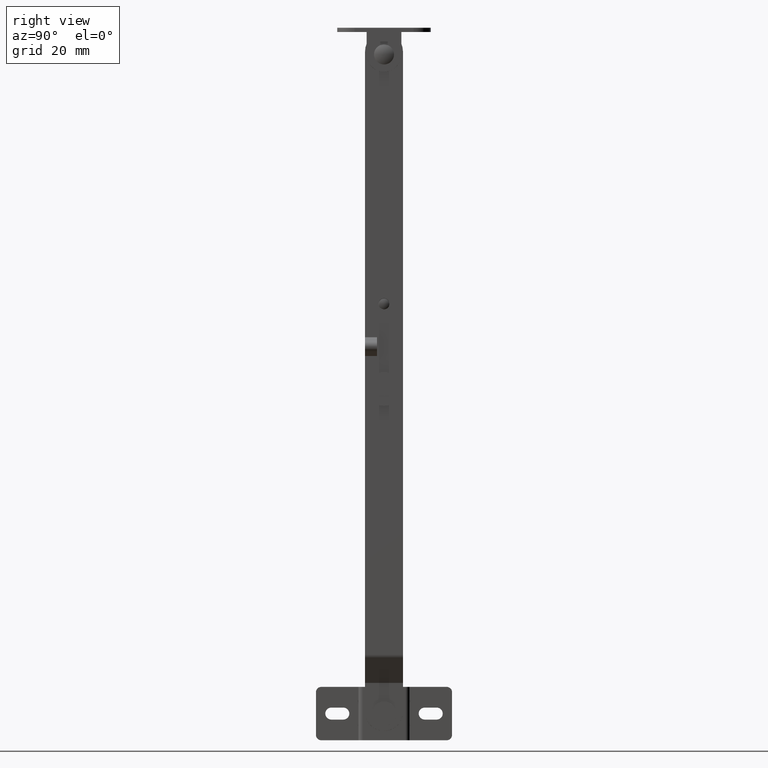
[diagram: clean part render]
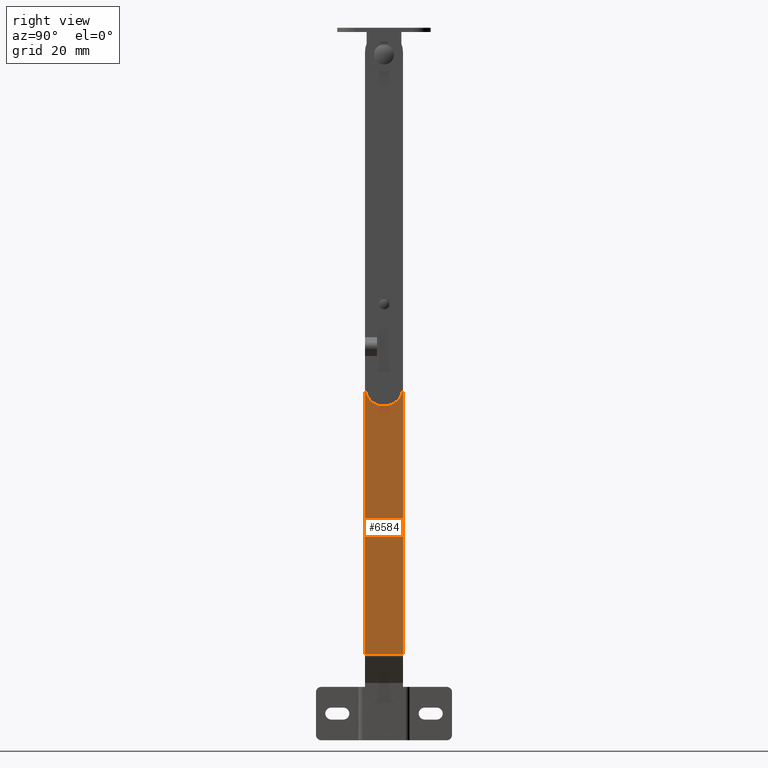
[diagram: same view with one face highlighted and labeled with its STEP entity id]
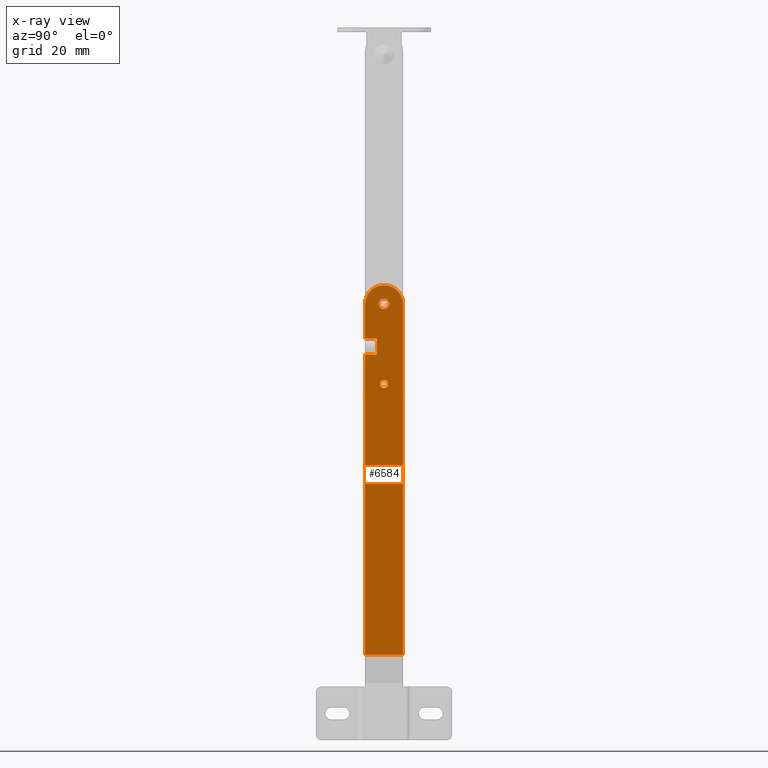
[diagram: x-ray of the same camera — body ghosted, the highlighted face saturated]
A machine part, right view. The second image highlights one B-rep face of the part: STEP entity #6584.
The next image is the same camera in x-ray: the body ghosted, the highlighted face saturated — about 0% of this face is hidden behind the body in this view.
In plain terms, the highlighted face is a freeform B-spline surface patch.
Its self-contained STEP definition (entity closure, byte-faithful):
#5370=CARTESIAN_POINT('',(18.000005999997811,-1.069875197960715,1.051364416939443));
#5371=VERTEX_POINT('',#5370);
#5372=CARTESIAN_POINT('',(18.000005999999850,-1.499999999999996,0.000000101906706));
#5373=VERTEX_POINT('',#5372);
#5374=CARTESIAN_POINT('',(18.000005999997811,-1.069875197960715,1.051364416939443));
#5375=CARTESIAN_POINT('',(18.000005999998098,-1.223274761191733,0.895759266303907));
#5376=CARTESIAN_POINT('',(18.000005999998809,-1.433295734405111,0.558185919963708));
#5377=CARTESIAN_POINT('',(18.000005999999502,-1.500104318488121,0.169912075723086));
#5378=CARTESIAN_POINT('',(18.000005999999850,-1.499999999999996,0.000000101906706));
#5379=B_SPLINE_CURVE_WITH_KNOTS('',3,(#5374,#5375,#5376,#5377,#5378),.UNSPECIFIED.,.F.,.U.,(4,1,4),(0.000000241074439,0.655361660020922,1.165122154659659),.UNSPECIFIED.);
#5380=EDGE_CURVE('',#5371,#5373,#5379,.T.);
#5382=CARTESIAN_POINT('',(18.000005999999850,0.0,-1.500000000000000));
#5383=VERTEX_POINT('',#5382);
#5384=CARTESIAN_POINT('',(18.000005999999850,-1.499999999999996,0.000000101906706));
#5385=CARTESIAN_POINT('',(18.000005999999861,-1.500227444283490,-0.196394948544765));
#5386=CARTESIAN_POINT('',(18.000005999999850,-1.441280870387536,-0.490726147554906));
#5387=CARTESIAN_POINT('',(18.000005999999861,-1.232015401121952,-0.882242641139707));
#5388=CARTESIAN_POINT('',(18.000005999999861,-0.932195025719677,-1.213302192652900));
#5389=CARTESIAN_POINT('',(18.000005999999821,-0.490922037095062,-1.449151624591697));
#5390=CARTESIAN_POINT('',(18.000005999999910,-0.147241673740855,-1.500021779058160));
#5391=CARTESIAN_POINT('',(18.000005999999850,0.0,-1.500000000000000));
#5392=B_SPLINE_CURVE_WITH_KNOTS('',3,(#5384,#5385,#5386,#5387,#5388,#5389,#5390,#5391),.UNSPECIFIED.,.F.,.U.,(4,1,1,1,1,4),(0.000000459268588,0.589113397398972,0.883685197253353,1.325465789790729,1.914625473615346,2.356430882423040),.UNSPECIFIED.);
#5393=EDGE_CURVE('',#5373,#5383,#5392,.T.);
#5395=CARTESIAN_POINT('',(18.000005999999850,1.499999999999997,-0.000000101906711));
#5396=VERTEX_POINT('',#5395);
#5397=CARTESIAN_POINT('',(18.000005999999850,0.0,-1.500000000000000));
#5398=CARTESIAN_POINT('',(18.000005999999861,0.196376588844617,-1.500198869482367));
#5399=CARTESIAN_POINT('',(18.000005999999861,0.588929825499899,-1.421784717390424));
#5400=CARTESIAN_POINT('',(18.000005999999850,1.088374743961445,-1.088400118192788));
#5401=CARTESIAN_POINT('',(18.000005999999850,1.421792717255046,-0.588895725307404));
#5402=CARTESIAN_POINT('',(18.000005999999861,1.500198714386067,-0.196383197151813));
#5403=CARTESIAN_POINT('',(18.000005999999850,1.499999999999997,-0.000000101906711));
#5404=B_SPLINE_CURVE_WITH_KNOTS('',3,(#5397,#5398,#5399,#5400,#5401,#5402,#5403),.UNSPECIFIED.,.F.,.U.,(4,1,1,1,4),(0.000000459807827,0.589113369118813,1.178215900984567,1.767323334941643,2.356430767539226),.UNSPECIFIED.);
#5405=EDGE_CURVE('',#5383,#5396,#5404,.T.);
#5407=CARTESIAN_POINT('',(18.000006000000660,1.051364381804585,1.069875161060284));
#5408=VERTEX_POINT('',#5407);
#5409=CARTESIAN_POINT('',(18.000005999999850,1.499999999999997,-0.000000101906711));
#5410=CARTESIAN_POINT('',(18.000005999999988,1.500121525805713,0.173730886278083));
#5411=CARTESIAN_POINT('',(18.000006000000280,1.430228177828410,0.570706831257276));
#5412=CARTESIAN_POINT('',(18.000006000000539,1.210980596278882,0.913542961924922));
#5413=CARTESIAN_POINT('',(18.000006000000660,1.051364381804585,1.069875161060284));
#5414=B_SPLINE_CURVE_WITH_KNOTS('',3,(#5409,#5410,#5411,#5412,#5413),.UNSPECIFIED.,.F.,.U.,(4,1,4),(0.000000135435641,0.521198240613445,1.191308738798347),.UNSPECIFIED.);
#5415=EDGE_CURVE('',#5396,#5408,#5414,.T.);
#5491=CARTESIAN_POINT('',(18.000005999999850,0.0,1.500000000000000));
#5492=VERTEX_POINT('',#5491);
#5493=CARTESIAN_POINT('',(18.000005999999850,0.0,1.500000000000000));
#5494=CARTESIAN_POINT('',(18.000005999999459,-0.223419713383883,1.500373917845267));
#5495=CARTESIAN_POINT('',(18.000005999998631,-0.620098183684959,1.409512868148845));
#5496=CARTESIAN_POINT('',(18.000005999998070,-0.948191207344548,1.175367822666613));
#5497=CARTESIAN_POINT('',(18.000005999997811,-1.069875197960715,1.051364416939443));
#5498=B_SPLINE_CURVE_WITH_KNOTS('',3,(#5493,#5494,#5495,#5496,#5497),.UNSPECIFIED.,.F.,.U.,(4,1,4),(0.000000135444576,0.670110588116630,1.191308657895127),.UNSPECIFIED.);
#5499=EDGE_CURVE('',#5492,#5371,#5498,.T.);
#5521=CARTESIAN_POINT('',(18.000006000000660,1.051364381804585,1.069875161060284));
#5522=CARTESIAN_POINT('',(18.000006000000582,0.930249975253763,1.189035121978661));
#5523=CARTESIAN_POINT('',(18.000006000000312,0.606485883561958,1.413553590749055));
#5524=CARTESIAN_POINT('',(18.000006000000049,0.218502841836865,1.500329550375375));
#5525=CARTESIAN_POINT('',(18.000005999999850,0.0,1.500000000000000));
#5526=B_SPLINE_CURVE_WITH_KNOTS('',3,(#5521,#5522,#5523,#5524,#5525),.UNSPECIFIED.,.F.,.U.,(4,1,4),(0.000000241082939,0.509760772015498,1.165122237614544),.UNSPECIFIED.);
#5527=EDGE_CURVE('',#5408,#5492,#5526,.T.);
#5638=CARTESIAN_POINT('',(18.000005999999900,-0.099999999999767,37.0));
#5639=VERTEX_POINT('',#5638);
#5640=CARTESIAN_POINT('',(18.000005999999900,-7.099999999999810,30.0));
#5641=VERTEX_POINT('',#5640);
#5642=CARTESIAN_POINT('',(18.000005999999900,-0.099999999999767,37.0));
#5643=CARTESIAN_POINT('',(18.000005999999900,-0.787240943959116,37.000264902871081));
#5644=CARTESIAN_POINT('',(18.000005999999939,-1.989721145432791,36.821458734627889));
#5645=CARTESIAN_POINT('',(18.000005999999871,-3.525507808337993,36.163033716187932));
#5646=CARTESIAN_POINT('',(18.000005999999939,-4.748743618887165,35.301506601080781));
#5647=CARTESIAN_POINT('',(18.000005999999910,-5.729157146626868,34.246182747488326));
#5648=CARTESIAN_POINT('',(18.000005999999910,-6.409518120238838,33.110891468642812));
#5649=CARTESIAN_POINT('',(18.000005999999910,-6.946895607827168,31.717893670812000));
#5650=CARTESIAN_POINT('',(18.000005999999910,-7.100336936778954,30.687263162264500));
#5651=CARTESIAN_POINT('',(18.000005999999900,-7.099999999999810,30.0));
#5652=B_SPLINE_CURVE_WITH_KNOTS('',3,(#5642,#5643,#5644,#5645,#5646,#5647,#5648,#5649,#5650,#5651),.UNSPECIFIED.,.F.,.U.,(4,1,1,1,1,1,1,4),(0.000000103439667,2.061694947791631,3.608039198011688,4.982502000589987,6.528757446212728,7.903253018398582,8.934154353678704,10.995850210342780),.UNSPECIFIED.);
#5653=EDGE_CURVE('',#5639,#5641,#5652,.T.);
#5698=CARTESIAN_POINT('',(18.000005999999900,7.100000000000130,30.0));
#5699=VERTEX_POINT('',#5698);
#5700=CARTESIAN_POINT('',(18.000005999999900,0.100000000000100,37.0));
#5701=VERTEX_POINT('',#5700);
#5702=CARTESIAN_POINT('',(18.000005999999900,7.100000000000130,30.0));
#5703=CARTESIAN_POINT('',(18.000005999999871,7.100264147598455,30.687243812945809));
#5704=CARTESIAN_POINT('',(18.000006000000020,6.921458873837890,31.889719167787881));
#5705=CARTESIAN_POINT('',(18.000005999999772,6.263033240860372,33.425507044337067));
#5706=CARTESIAN_POINT('',(18.000006000000042,5.401510095593885,34.648750035756862));
#5707=CARTESIAN_POINT('',(18.000005999999750,4.346171773749406,35.629141261617633));
#5708=CARTESIAN_POINT('',(18.000006000000042,3.112194308434527,36.368732656693247));
#5709=CARTESIAN_POINT('',(18.000005999999971,1.703441702506198,36.872751399164841));
#5710=CARTESIAN_POINT('',(18.000005999999839,0.672696120733801,37.000159077071586));
#5711=CARTESIAN_POINT('',(18.000005999999900,0.100000000000100,37.0));
#5712=B_SPLINE_CURVE_WITH_KNOTS('',3,(#5702,#5703,#5704,#5705,#5706,#5707,#5708,#5709,#5710,#5711),.UNSPECIFIED.,.F.,.U.,(4,1,1,1,1,1,1,4),(0.000000103435360,2.061694947788730,3.608039198009919,4.982502000589058,6.528757446212449,7.903253018398548,9.277781528671991,10.995850210342789),.UNSPECIFIED.);
#5713=EDGE_CURVE('',#5699,#5701,#5712,.T.);
#5749=CARTESIAN_POINT('',(18.000000627530550,-2.599999999999920,16.999990730335298));
#5750=VERTEX_POINT('',#5749);
#5751=CARTESIAN_POINT('',(18.000002195611749,-2.599999999999915,11.000010420705159));
#5752=VERTEX_POINT('',#5751);
#5753=CARTESIAN_POINT('',(18.000000627530550,-2.599999999999920,16.999990730335298));
#5754=CARTESIAN_POINT('',(18.000002195611749,-2.599999999999915,11.000010420705159));
#5755=QUASI_UNIFORM_CURVE('',1,(#5753,#5754),.UNSPECIFIED.,.F.,.U.);
#5756=EDGE_CURVE('',#5750,#5752,#5755,.T.);
#5836=CARTESIAN_POINT('',(17.999997000007362,-7.099999999999885,10.999999999972101));
#5837=VERTEX_POINT('',#5836);
#5843=CARTESIAN_POINT('',(18.000002195611749,-2.599999999999915,11.000010420705159));
#5844=CARTESIAN_POINT('',(17.999997000007362,-7.099999999999885,10.999999999972101));
#5845=QUASI_UNIFORM_CURVE('',1,(#5843,#5844),.UNSPECIFIED.,.F.,.U.);
#5846=EDGE_CURVE('',#5752,#5837,#5845,.T.);
#6079=CARTESIAN_POINT('',(17.999997000004878,-7.099999999999790,16.999999999971699));
#6080=VERTEX_POINT('',#6079);
#6081=CARTESIAN_POINT('',(17.999997000004878,-7.099999999999790,16.999999999971699));
#6082=CARTESIAN_POINT('',(18.000000627530550,-2.599999999999920,16.999990730335298));
#6083=QUASI_UNIFORM_CURVE('',1,(#6081,#6082),.UNSPECIFIED.,.F.,.U.);
#6084=EDGE_CURVE('',#6080,#5750,#6083,.T.);
#6196=CARTESIAN_POINT('',(18.000005999999900,-1.999999999985313,30.000007559947051));
#6197=VERTEX_POINT('',#6196);
#6198=CARTESIAN_POINT('',(18.000005999999900,1.136868E-013,31.999999999999719));
#6199=VERTEX_POINT('',#6198);
#6200=CARTESIAN_POINT('',(18.000005999999900,-1.999999999985313,30.000007559947051));
#6201=CARTESIAN_POINT('',(18.000005999999889,-2.000565371159500,30.311013867417230));
#6202=CARTESIAN_POINT('',(18.000005999999910,-1.883140782793309,30.801340805709710));
#6203=CARTESIAN_POINT('',(18.000005999999921,-1.509335135315874,31.345910668836670));
#6204=CARTESIAN_POINT('',(18.000005999999878,-1.134839216545367,31.668949327266251));
#6205=CARTESIAN_POINT('',(18.000005999999921,-0.638006823768049,31.926744771012959));
#6206=CARTESIAN_POINT('',(18.000005999999878,-0.245474572529936,32.000225613508988));
#6207=CARTESIAN_POINT('',(18.000005999999900,1.136868E-013,31.999999999999719));
#6208=B_SPLINE_CURVE_WITH_KNOTS('',3,(#6200,#6201,#6202,#6203,#6204,#6205,#6206,#6207),.UNSPECIFIED.,.F.,.U.,(4,1,1,1,1,4),(0.000000638225999,0.932685713158516,1.472686427989720,1.963499368629461,2.405340284376233,3.141667227807020),.UNSPECIFIED.);
#6209=EDGE_CURVE('',#6197,#6199,#6208,.T.);
#6211=CARTESIAN_POINT('',(18.000005999999900,1.136868E-013,28.000000000000281));
#6212=VERTEX_POINT('',#6211);
#6213=CARTESIAN_POINT('',(18.000005999999900,1.136868E-013,28.000000000000281));
#6214=CARTESIAN_POINT('',(18.000005999999939,-0.196348782257639,27.999930856921640));
#6215=CARTESIAN_POINT('',(18.000005999999850,-0.589001819817032,28.058299677600719));
#6216=CARTESIAN_POINT('',(18.000005999999939,-1.187280987089710,28.340976201936051));
#6217=CARTESIAN_POINT('',(18.000005999999921,-1.623589757854901,28.777364251423968));
#6218=CARTESIAN_POINT('',(18.000005999999889,-1.926728913975265,29.362017336602658));
#6219=CARTESIAN_POINT('',(18.000005999999949,-2.000225105216075,29.754531707706018));
#6220=CARTESIAN_POINT('',(18.000005999999900,-1.999999999985313,30.000007559947051));
#6221=B_SPLINE_CURVE_WITH_KNOTS('',3,(#6213,#6214,#6215,#6216,#6217,#6218,#6219,#6220),.UNSPECIFIED.,.F.,.U.,(4,1,1,1,1,4),(0.000000627933325,0.589044574716613,1.178174674353226,1.963504714422672,2.405346803948600,3.141675749841967),.UNSPECIFIED.);
#6222=EDGE_CURVE('',#6212,#6197,#6221,.T.);
#6224=CARTESIAN_POINT('',(18.000005999999900,1.999999999985541,29.999992440052939));
#6225=VERTEX_POINT('',#6224);
#6226=CARTESIAN_POINT('',(18.000005999999900,1.999999999985541,29.999992440052939));
#6227=CARTESIAN_POINT('',(18.000005999999921,2.000515666860837,29.688970640469641));
#6228=CARTESIAN_POINT('',(18.000005999999900,1.890958112514096,29.231419244818291));
#6229=CARTESIAN_POINT('',(18.000005999999932,1.504844235282676,28.637950032909039));
#6230=CARTESIAN_POINT('',(18.000005999999949,0.931991028951319,28.155663913671319));
#6231=CARTESIAN_POINT('',(18.000005999999821,0.343765583155900,27.999185778880410));
#6232=CARTESIAN_POINT('',(18.000005999999900,1.136868E-013,28.000000000000281));
#6233=B_SPLINE_CURVE_WITH_KNOTS('',3,(#6226,#6227,#6228,#6229,#6230,#6231,#6232),.UNSPECIFIED.,.F.,.U.,(4,1,1,1,4),(0.000000638224881,0.932685713158092,1.374524237457893,2.110791377949814,3.141667227807014),.UNSPECIFIED.);
#6234=EDGE_CURVE('',#6225,#6212,#6233,.T.);
#6236=CARTESIAN_POINT('',(18.000005999999900,1.136868E-013,31.999999999999719));
#6237=CARTESIAN_POINT('',(18.000005999999878,0.311020016322471,32.000568041039116));
#6238=CARTESIAN_POINT('',(18.000005999999949,0.768609956762285,31.890939225445319));
#6239=CARTESIAN_POINT('',(18.000005999999829,1.320584715161751,31.531719818006849));
#6240=CARTESIAN_POINT('',(18.000005999999988,1.631580372345761,31.188592803001701));
#6241=CARTESIAN_POINT('',(18.000005999999750,1.916693353125000,30.670613710804240));
#6242=CARTESIAN_POINT('',(18.000005999999910,2.000384827440075,30.278240529894280));
#6243=CARTESIAN_POINT('',(18.000005999999900,1.999999999985541,29.999992440052939));
#6244=B_SPLINE_CURVE_WITH_KNOTS('',3,(#6236,#6237,#6238,#6239,#6240,#6241,#6242,#6243),.UNSPECIFIED.,.F.,.U.,(4,1,1,1,1,4),(0.000000627932999,0.932688232655183,1.374527968180599,1.963504714422686,2.307167179406567,3.141675749841979),.UNSPECIFIED.);
#6245=EDGE_CURVE('',#6199,#6225,#6244,.T.);
#6292=CARTESIAN_POINT('',(18.000005999999900,7.100000000000111,-101.437737469526000));
#6293=VERTEX_POINT('',#6292);
#6294=CARTESIAN_POINT('',(18.000005999999900,7.100000000000111,-101.437737469526000));
#6295=CARTESIAN_POINT('',(18.000005999999900,7.100000000000130,30.0));
#6296=QUASI_UNIFORM_CURVE('',1,(#6294,#6295),.UNSPECIFIED.,.F.,.U.);
#6297=EDGE_CURVE('',#6293,#5699,#6296,.T.);
#6321=CARTESIAN_POINT('',(18.000005999999900,0.100000000000100,37.0));
#6322=CARTESIAN_POINT('',(18.000005999999900,-0.099999999999767,37.0));
#6323=QUASI_UNIFORM_CURVE('',1,(#6321,#6322),.UNSPECIFIED.,.F.,.U.);
#6324=EDGE_CURVE('',#5701,#5639,#6323,.T.);
#6352=CARTESIAN_POINT('',(18.000005999999900,-7.099999999999770,-101.437737469526000));
#6353=VERTEX_POINT('',#6352);
#6367=CARTESIAN_POINT('',(18.000005999999900,7.100000000000111,-101.437737469526000));
#6368=CARTESIAN_POINT('',(18.000005999999900,-7.099999999999770,-101.437737469526000));
#6369=QUASI_UNIFORM_CURVE('',1,(#6367,#6368),.UNSPECIFIED.,.F.,.U.);
#6370=EDGE_CURVE('',#6293,#6353,#6369,.T.);
#6518=CARTESIAN_POINT('',(18.000005999999900,-7.099999999999770,-101.437737469526000));
#6519=CARTESIAN_POINT('',(17.999997000007362,-7.099999999999885,10.999999999972101));
#6520=QUASI_UNIFORM_CURVE('',1,(#6518,#6519),.UNSPECIFIED.,.F.,.U.);
#6521=EDGE_CURVE('',#6353,#5837,#6520,.T.);
#6526=CARTESIAN_POINT('',(17.999997000004878,-7.099999999999790,16.999999999971699));
#6527=CARTESIAN_POINT('',(18.000005999999900,-7.099999999999810,30.0));
#6528=QUASI_UNIFORM_CURVE('',1,(#6526,#6527),.UNSPECIFIED.,.F.,.U.);
#6529=EDGE_CURVE('',#6080,#5641,#6528,.T.);
#6553=CARTESIAN_POINT('',(18.000005999999900,-7.809289972477532,43.914964718283628));
#6554=CARTESIAN_POINT('',(18.000005999999910,-7.809289972477532,-108.352705900999100));
#6555=CARTESIAN_POINT('',(18.000005999999910,7.809290353351457,43.914964718283628));
#6556=CARTESIAN_POINT('',(18.000005999999910,7.809290353351457,-108.352705900999100));
#6557=B_SPLINE_SURFACE_WITH_KNOTS('',1,1,((#6553,#6555),(#6554,#6556)),.UNSPECIFIED.,.F.,.F.,.U.,(2,2),(2,2),(0.0,152.267670619282710),(0.0,15.618580325828990),.UNSPECIFIED.);
#6558=ORIENTED_EDGE('',*,*,#6297,.T.);
#6559=ORIENTED_EDGE('',*,*,#5713,.T.);
#6560=ORIENTED_EDGE('',*,*,#6324,.T.);
#6561=ORIENTED_EDGE('',*,*,#5653,.T.);
#6562=ORIENTED_EDGE('',*,*,#6529,.F.);
#6563=ORIENTED_EDGE('',*,*,#6084,.T.);
#6564=ORIENTED_EDGE('',*,*,#5756,.T.);
#6565=ORIENTED_EDGE('',*,*,#5846,.T.);
#6566=ORIENTED_EDGE('',*,*,#6521,.F.);
#6567=ORIENTED_EDGE('',*,*,#6370,.F.);
#6568=EDGE_LOOP('',(#6558,#6559,#6560,#6561,#6562,#6563,#6564,#6565,#6566,#6567));
#6569=FACE_OUTER_BOUND('',#6568,.T.);
#6570=ORIENTED_EDGE('',*,*,#5393,.F.);
#6571=ORIENTED_EDGE('',*,*,#5380,.F.);
#6572=ORIENTED_EDGE('',*,*,#5499,.F.);
#6573=ORIENTED_EDGE('',*,*,#5527,.F.);
#6574=ORIENTED_EDGE('',*,*,#5415,.F.);
#6575=ORIENTED_EDGE('',*,*,#5405,.F.);
#6576=EDGE_LOOP('',(#6570,#6571,#6572,#6573,#6574,#6575));
#6577=FACE_BOUND('',#6576,.T.);
#6578=ORIENTED_EDGE('',*,*,#6245,.T.);
#6579=ORIENTED_EDGE('',*,*,#6234,.T.);
#6580=ORIENTED_EDGE('',*,*,#6222,.T.);
#6581=ORIENTED_EDGE('',*,*,#6209,.T.);
#6582=EDGE_LOOP('',(#6578,#6579,#6580,#6581));
#6583=FACE_BOUND('',#6582,.T.);
#6584=ADVANCED_FACE('',(#6569,#6577,#6583),#6557,.T.);